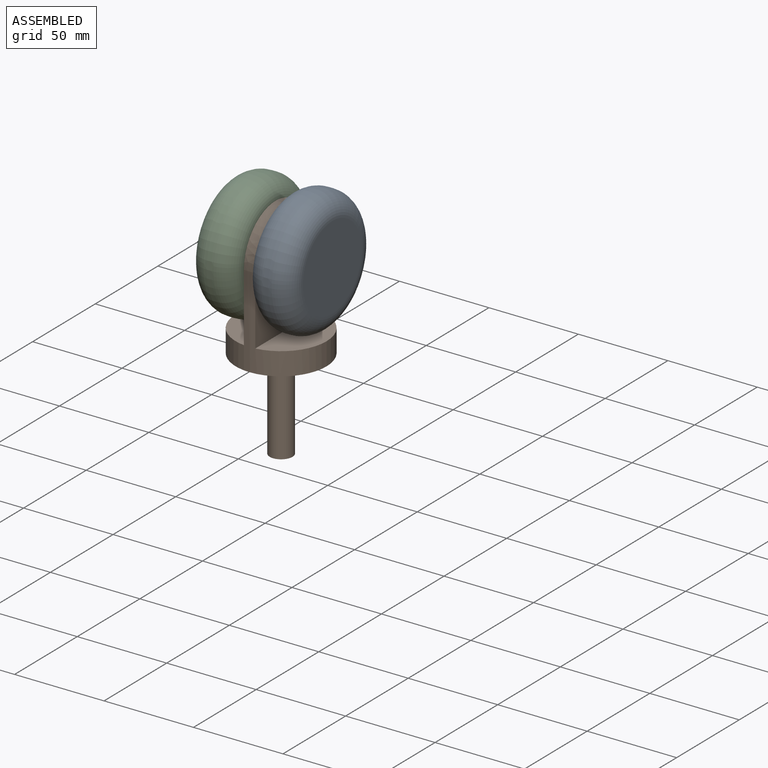
[diagram: assembled view]
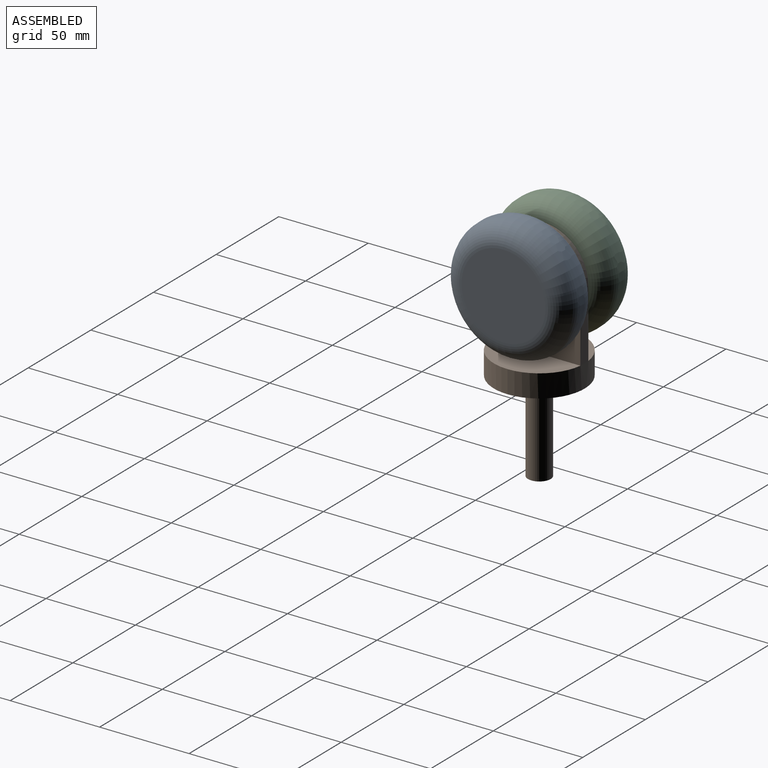
[diagram: assembled view, second angle]
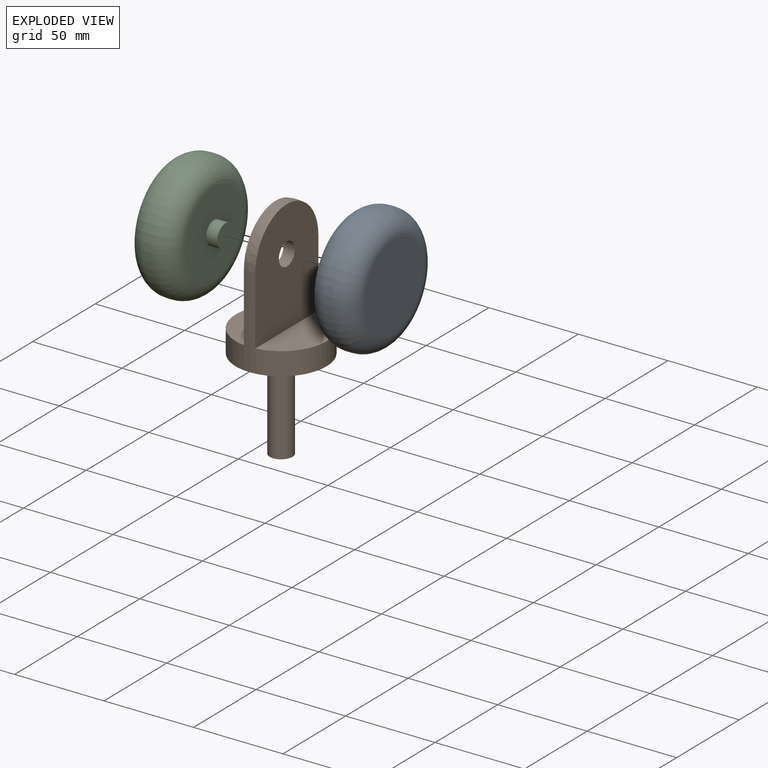
[diagram: exploded view]
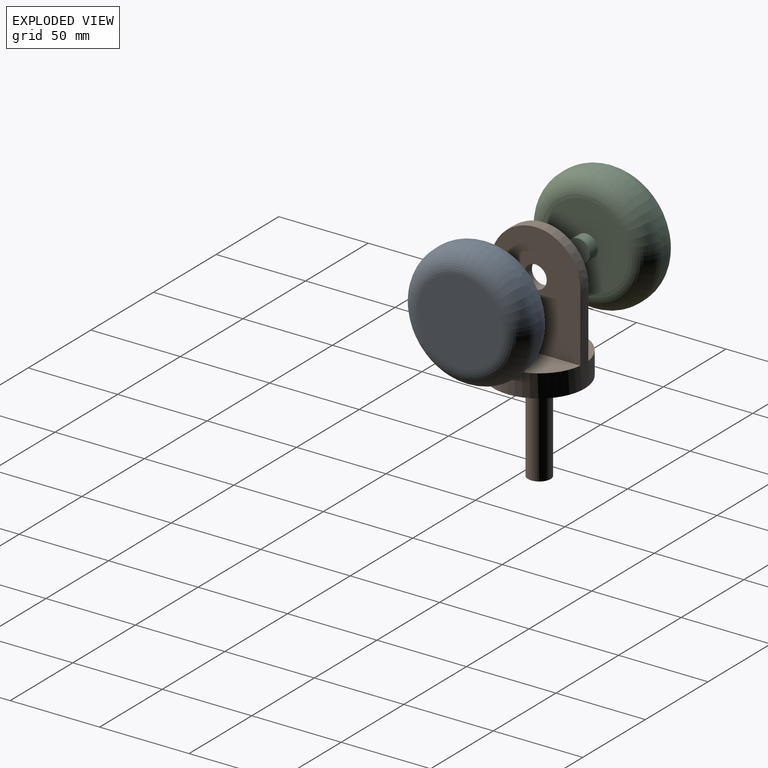
[diagram: exploded view, second angle]
ASSEMBLY  parts=3 mates=2
PART A: 7 faces, bbox 75.6x31.8x75.6 mm
  f0: cylinder r=34.92mm len=69.85mm, axis (0,1,0), area 557.4mm2, adj f5,f6
  f1: plane 46.99x46.99mm, normal (0,-1,0), area 1607.5mm2, adj f3,f6
  f2: plane 46.99x46.99mm, normal (0,1,0), area 1734.2mm2, adj f5
  f3: cylinder r=6.35mm len=12.7mm, axis (0,1,0), area 253.4mm2, adj f1,f4
  f4: plane 12.7x12.7mm, normal (0,-1,0), area 126.7mm2, adj f3
  f5: torus R=23.49mm, axis (0,-1,0), area 3471.3mm2, adj f0,f2
  f6: torus R=23.49mm, axis (0,-1,0), area 3471.3mm2, adj f0,f1
PART B: 10 faces, bbox 50.8x50.8x127 mm
  f0: cylinder r=25.4mm len=50.8mm, axis (0,0,-1), area 2512mm2, adj f1,f2,f3,f4,f5,f8
  f1: plane 50.4x22.23mm, normal (0,0,1), area 852.5mm2, adj f0,f2
  f2: plane 63.3x50.4mm, normal (1,0,0), area 2791.2mm2, adj f0,f1,f5,f6
  f3: plane 50.4x22.23mm, normal (0,0,1), area 852.5mm2, adj f0,f4
  f4: plane 63.3x50.4mm, normal (-1,0,0), area 2791.2mm2, adj f0,f3,f5,f6
  f5: sphere r=25.4mm, area 506.9mm2, adj f0,f2,f4
  f6: cylinder r=6.35mm len=12.7mm, axis (1,0,0), area 253.4mm2, adj f2,f4
  f7: cylinder r=6.35mm len=50.8mm, axis (0,0,-1), area 2026.8mm2, adj f8,f9
  f8: plane 50.8x50.8mm, normal (0,0,-1), area 1900.2mm2, adj f0,f7
  f9: plane 12.7x12.7mm, normal (0,0,-1), area 126.7mm2, adj f7
PART C: same geometry as A
PLACE A rot(axis=(0,0,-1),90deg) t=(-5.69,11.72,85.35)mm
PLACE B t=(-34.27,11.72,-16.25)mm fixed
PLACE C rot(axis=(0.71,-0.71,0),180deg) t=(-62.84,11.72,85.35)mm
MATE revolute C.f0 <-> B.f6  axis (1,0,0) through (-37.44,11.72,85.35)mm
MATE revolute A.f3 <-> B.f6  axis (-1,0,0) through (-31.09,11.72,85.35)mm
